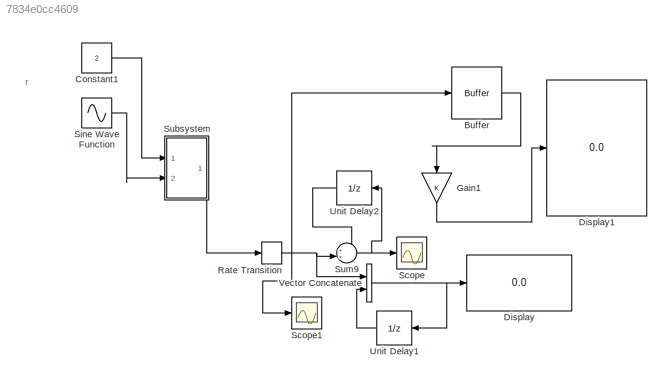
MODEL slx_7834e0cc4609
KIND model
CONFIG AbsTol = auto
CONFIG EnableMultiTasking = off
CONFIG FixedStep = auto
CONFIG MaxStep = auto
CONFIG MinStep = auto
CONFIG RelTol = 1e-3
CONFIG SampleTimeConstraint = Unconstrained
CONFIG SolverName = VariableStepAuto
CONFIG StartTime = 0.0
CONFIG StopTime = 10.0
BLOCK [Buffer] Buffer
  OutputFrames = off
BLOCK [Constant] Constant1
  SampleTime = -1
  Value = 2
BLOCK [Display] Display
  Decimation = 1
  Ports = [1]
BLOCK [Display] Display1
  Decimation = 1
  Ports = [1]
BLOCK [Gain] Gain1
  NameLocation = left
BLOCK [RateTransition] Rate Transition
  OutPortSampleTime = 1
BLOCK [Scope] Scope
  Floating = off
  NumInputPorts = 1
  Ports = [1]
  ScopeSpecificationString = Simulink.scopes.TimeScopeBlockCfg('CurrentConfiguration', extmgr.ConfigurationSet(extmgr.Configuration('Core','General UI',true),extmgr.Configuration('Core','Source UI',true),extmgr.Configuration('Sources','WiredSimulink',true),extmgr.Configuration('Visuals','Time Domain',true,'SerializedDisplays',{struct('MinYLimReal','-1.25924','MaxYLimReal','5.80135','YLabelReal','','MinYLimMag','0.00000','MaxY...<+1353ch>
BLOCK [Scope] Scope1
  Floating = off
  NumInputPorts = 1
  Ports = [1]
  ScopeSpecificationString = Simulink.scopes.TimeScopeBlockCfg('CurrentConfiguration', extmgr.ConfigurationSet(extmgr.Configuration('Core','General UI',true),extmgr.Configuration('Core','Source UI',true),extmgr.Configuration('Sources','WiredSimulink',true,'DataLoggingVariableName','ScopeData1'),extmgr.Configuration('Visuals','Time Domain',true,'SerializedDisplays',{struct('MinYLimReal','-2.5','MaxYLimReal','2.5','YLabelReal',...<+1379ch>
BLOCK [Sin] Sine Wave Function
  Amplitude = 4
  Ports = [0, 1]
  SampleTime = 0
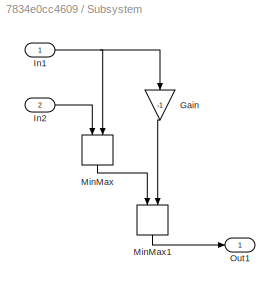
BLOCK [SubSystem] Subsystem
  Ports = [2, 1]
  RequestExecContextInheritance = off
BLOCK [Gain] Subsystem/Gain
  Gain = -1
  NameLocation = left
BLOCK [Inport] Subsystem/In1
BLOCK [Inport] Subsystem/In2
  Port = 2
BLOCK [MinMax] Subsystem/MinMax
  Inputs = 2
  NameLocation = left
  Ports = [2, 1]
BLOCK [MinMax] Subsystem/MinMax1
  Function = max
  Inputs = 2
  NameLocation = left
  Ports = [2, 1]
BLOCK [Outport] Subsystem/Out1
BLOCK [Sum] Sum9
  Inputs = ++|
  Ports = [2, 1]
BLOCK [UnitDelay] Unit Delay1
  HasFrameUpgradeWarning = on
  SampleTime = -1
BLOCK [UnitDelay] Unit Delay2
  HasFrameUpgradeWarning = on
  SampleTime = -1
BLOCK [Concatenate] Vector Concatenate
  Mode = Multidimensional array
  Ports = [2, 1]
ANNOTATION (root): r
LINE Buffer:1 -> Gain1:1
LINE Constant1:1 -> Subsystem:1
LINE Gain1:1 -> Display1:1
NET Rate Transition:1 -> Buffer:1, Scope1:1, Sum9:2, Vector Concatenate:1
LINE Sine Wave Function:1 -> Subsystem:2
LINE Subsystem/Gain:1 -> Subsystem/MinMax1:2
NET Subsystem/In1:1 -> Subsystem/Gain:1, Subsystem/MinMax:2
LINE Subsystem/In2:1 -> Subsystem/MinMax:1
LINE Subsystem/MinMax1:1 -> Subsystem/Out1:1
LINE Subsystem/MinMax:1 -> Subsystem/MinMax1:1
LINE Subsystem:1 -> Rate Transition:1
NET Sum9:1 -> Scope:1, Unit Delay2:1
LINE Unit Delay1:1 -> Vector Concatenate:2
LINE Unit Delay2:1 -> Sum9:1
NET Vector Concatenate:1 -> Display:1, Unit Delay1:1
note: NET lines group one-source signal fan-out (src -> all destinations, sorted); 1:1 wires keep LINE
